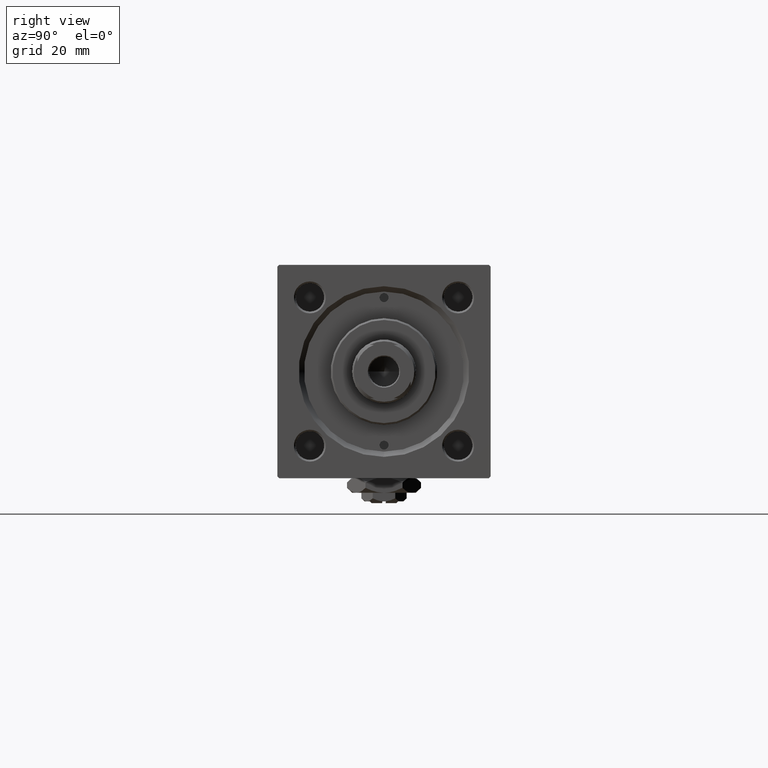
[diagram: clean part render]
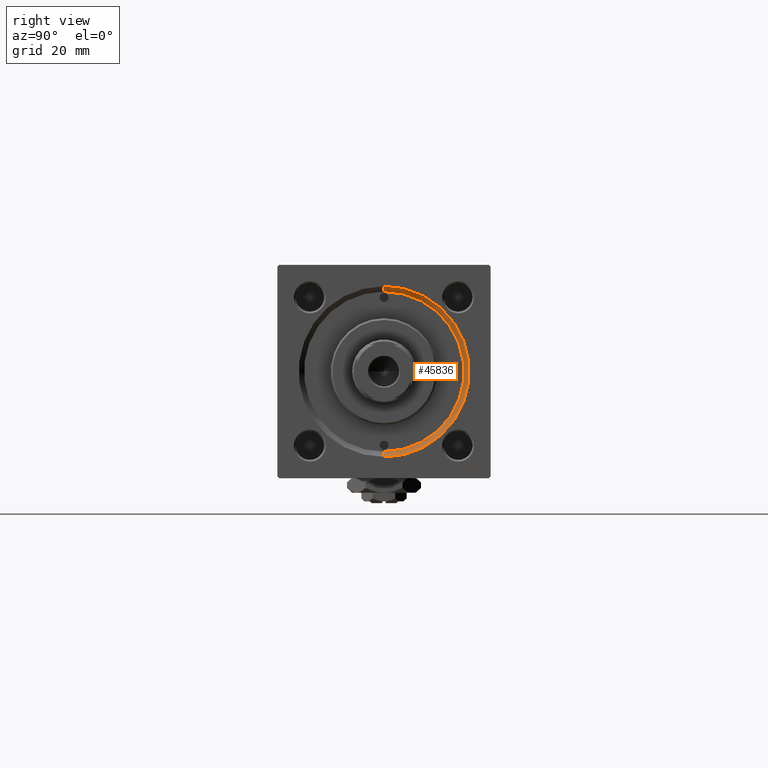
[diagram: same view with one face highlighted and labeled with its STEP entity id]
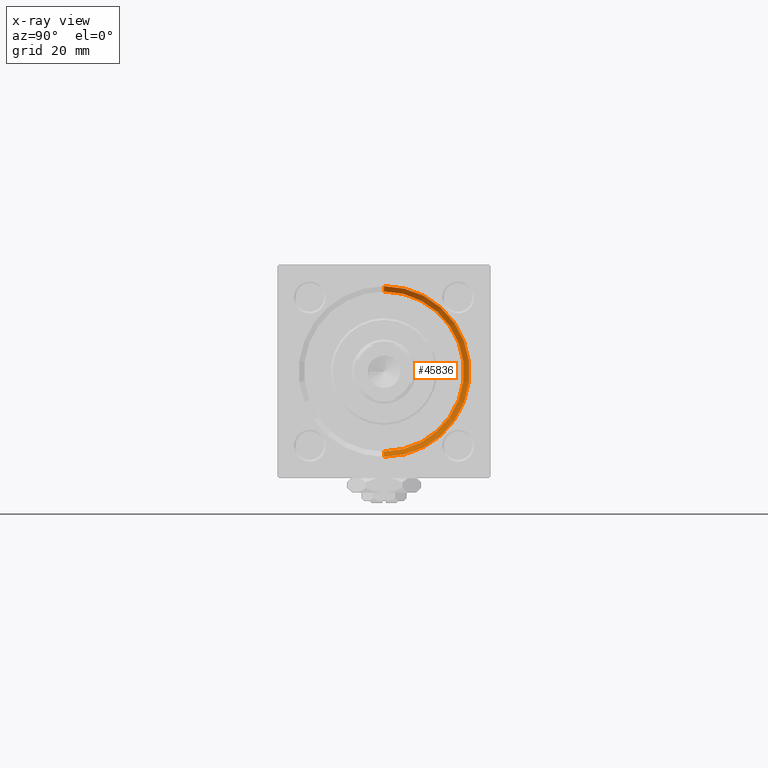
[diagram: x-ray of the same camera — body ghosted, the highlighted face saturated]
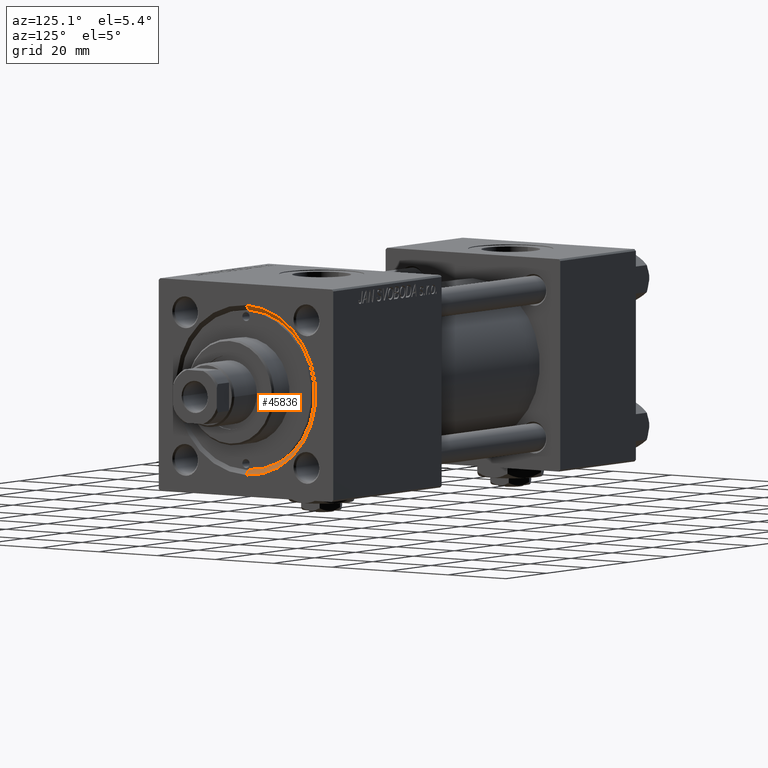
[diagram: same view with one face highlighted and labeled with its STEP entity id]
A machine part, right view. The second image highlights one B-rep face of the part: STEP entity #45836.
The next image is the same camera in x-ray: the body ghosted, the highlighted face saturated — about 0% of this face is hidden behind the body in this view.
A second angle (auxiliary view) of the same face is appended — the face is thin or edge-on in the first view.
In plain terms, the highlighted conical surface has half-angle 45 deg.
Its self-contained STEP definition (entity closure, byte-faithful):
#1069 = DIRECTION ( 'NONE',  ( 0.000000000000000000, 0.000000000000000000, 1.000000000000000000 ) ) ;
#2433 = CIRCLE ( 'NONE', #45615, 22.50000000000000355 ) ;
#3557 = DIRECTION ( 'NONE',  ( 1.000000000000000000, 0.000000000000000000, 0.000000000000000000 ) ) ;
#4647 = CARTESIAN_POINT ( 'NONE',  ( 146.4999999999999432, 2.755455298081545172E-15, 22.50000000000000355 ) ) ;
#5338 = VERTEX_POINT ( 'NONE', #7028 ) ;
#6263 = CIRCLE ( 'NONE', #19801, 24.00000000000003908 ) ;
#6500 = FACE_OUTER_BOUND ( 'NONE', #29833, .T. ) ;
#7028 = CARTESIAN_POINT ( 'NONE',  ( 146.4999999999999432, 0.000000000000000000, -22.50000000000000355 ) ) ;
#8897 = DIRECTION ( 'NONE',  ( 0.7071067811865524577, 8.659560562354874926E-17, 0.7071067811865426878 ) ) ;
#10739 = CARTESIAN_POINT ( 'NONE',  ( 146.4999999999999432, 0.000000000000000000, 0.000000000000000000 ) ) ;
#11638 = VERTEX_POINT ( 'NONE', #17953 ) ;
#13573 = VECTOR ( 'NONE', #39526, 1000.000000000000000 ) ;
#14187 = EDGE_CURVE ( 'NONE', #5338, #11638, #23362, .T. ) ;
#14835 = DIRECTION ( 'NONE',  ( 0.000000000000000000, 0.000000000000000000, 1.000000000000000000 ) ) ;
#17135 = CARTESIAN_POINT ( 'NONE',  ( 146.4999999999999432, 2.755455298081545172E-15, 22.50000000000000355 ) ) ;
#17953 = CARTESIAN_POINT ( 'NONE',  ( 148.0000000000000000, 0.000000000000000000, -24.00000000000003908 ) ) ;
#19801 = AXIS2_PLACEMENT_3D ( 'NONE', #45410, #41439, #14835 ) ;
#20766 = ORIENTED_EDGE ( 'NONE', *, *, #29751, .F. ) ;
#22848 = ORIENTED_EDGE ( 'NONE', *, *, #44958, .F. ) ;
#23210 = CONICAL_SURFACE ( 'NONE', #49488, 22.50000000000000355, 0.7853981633974415066 ) ;
#23362 = LINE ( 'NONE', #35559, #13573 ) ;
#23442 = DIRECTION ( 'NONE',  ( 0.000000000000000000, 0.000000000000000000, -1.000000000000000000 ) ) ;
#24793 = LINE ( 'NONE', #4647, #35471 ) ;
#29751 = EDGE_CURVE ( 'NONE', #5338, #32329, #2433, .T. ) ;
#29833 = EDGE_LOOP ( 'NONE', ( #48216, #20766, #39171, #22848 ) ) ;
#30364 = EDGE_CURVE ( 'NONE', #32329, #52384, #24793, .T. ) ;
#32329 = VERTEX_POINT ( 'NONE', #17135 ) ;
#35471 = VECTOR ( 'NONE', #8897, 1000.000000000000000 ) ;
#35559 = CARTESIAN_POINT ( 'NONE',  ( 146.4999999999999432, 0.000000000000000000, -22.50000000000000355 ) ) ;
#37374 = CARTESIAN_POINT ( 'NONE',  ( 146.4999999999999432, 0.000000000000000000, 0.000000000000000000 ) ) ;
#39171 = ORIENTED_EDGE ( 'NONE', *, *, #14187, .T. ) ;
#39526 = DIRECTION ( 'NONE',  ( 0.7071067811865524577, 0.000000000000000000, -0.7071067811865426878 ) ) ;
#41439 = DIRECTION ( 'NONE',  ( -1.000000000000000000, 0.000000000000000000, -0.000000000000000000 ) ) ;
#44958 = EDGE_CURVE ( 'NONE', #52384, #11638, #6263, .T. ) ;
#45410 = CARTESIAN_POINT ( 'NONE',  ( 148.0000000000000000, 0.000000000000000000, 0.000000000000000000 ) ) ;
#45615 = AXIS2_PLACEMENT_3D ( 'NONE', #37374, #50353, #1069 ) ;
#45836 = ADVANCED_FACE ( 'NONE', ( #6500 ), #23210, .F. ) ;
#48216 = ORIENTED_EDGE ( 'NONE', *, *, #30364, .F. ) ;
#49488 = AXIS2_PLACEMENT_3D ( 'NONE', #10739, #3557, #23442 ) ;
#50353 = DIRECTION ( 'NONE',  ( 1.000000000000000000, 0.000000000000000000, 0.000000000000000000 ) ) ;
#50649 = CARTESIAN_POINT ( 'NONE',  ( 148.0000000000000000, 2.939152317953652628E-15, 24.00000000000003908 ) ) ;
#52384 = VERTEX_POINT ( 'NONE', #50649 ) ;